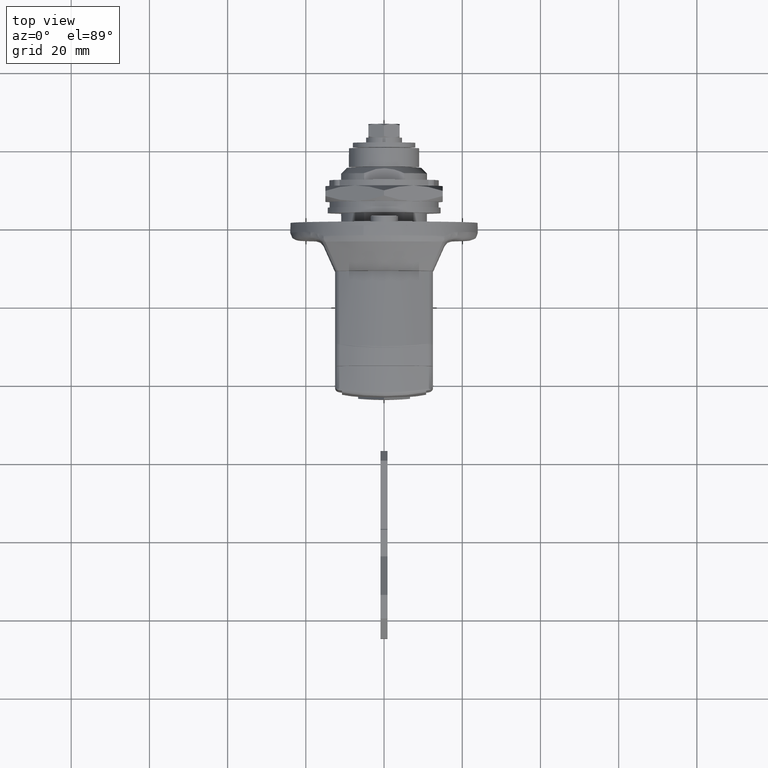
[diagram: clean part render]
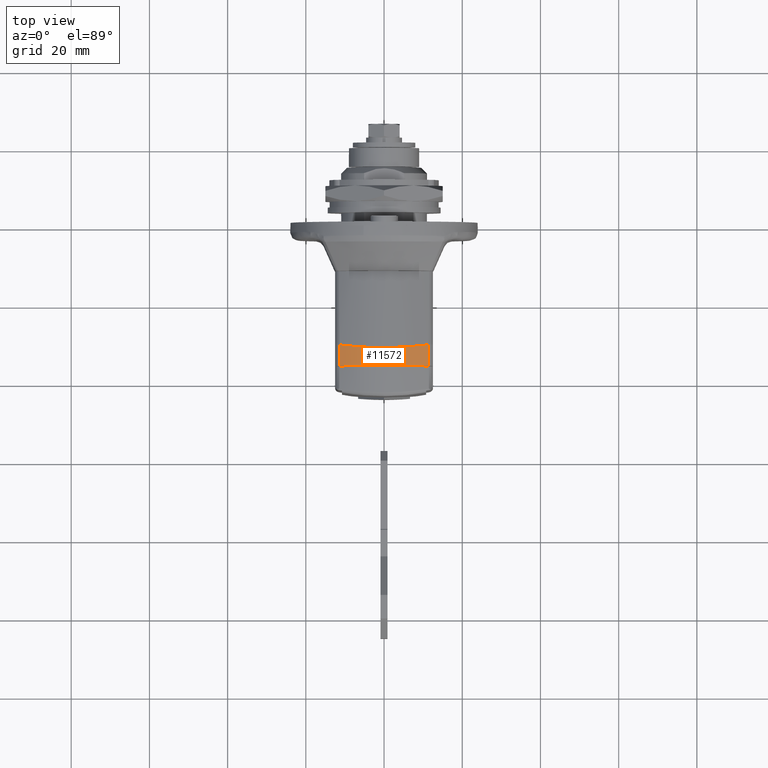
[diagram: same view with one face highlighted and labeled with its STEP entity id]
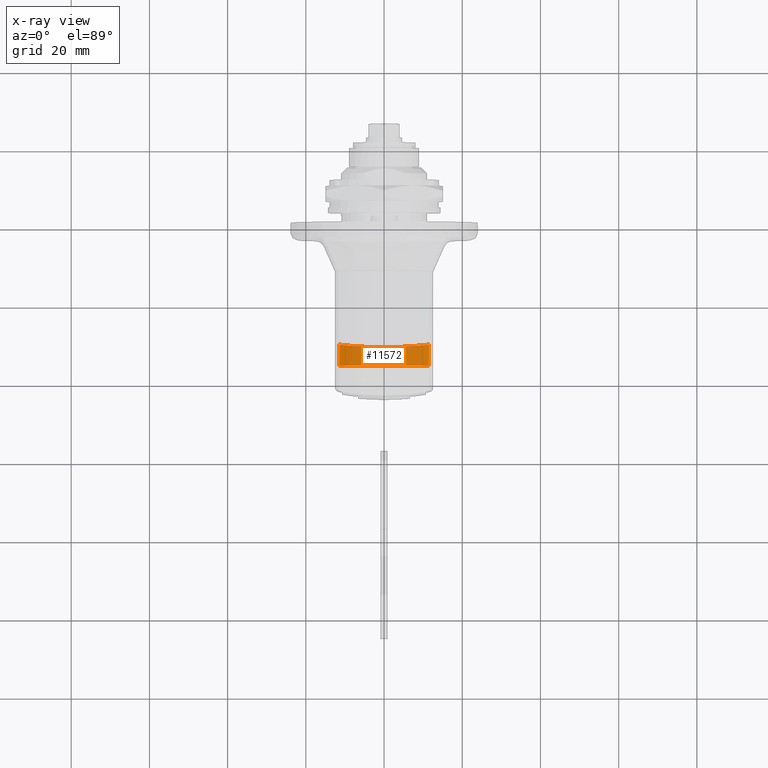
[diagram: x-ray of the same camera — body ghosted, the highlighted face saturated]
A machine part, top view. The second image highlights one B-rep face of the part: STEP entity #11572.
The next image is the same camera in x-ray: the body ghosted, the highlighted face saturated — about 0% of this face is hidden behind the body in this view.
In plain terms, the highlighted face is a freeform B-spline surface patch.
Its self-contained STEP definition (entity closure, byte-faithful):
#10377=CARTESIAN_POINT('',(-31.397209567573960,-11.454545454545460,14.090125377288761));
#10378=VERTEX_POINT('',#10377);
#10429=CARTESIAN_POINT('',(-31.397209567574048,11.454545454545761,14.090125377288601));
#10430=VERTEX_POINT('',#10429);
#10444=CARTESIAN_POINT('',(-31.397209567573960,-11.454545454545460,14.090125377288761));
#10445=CARTESIAN_POINT('',(-31.521169434124111,-10.577979726087261,14.566208937765539));
#10446=CARTESIAN_POINT('',(-31.629881124410051,-9.678369838751090,14.984315068618230));
#10447=CARTESIAN_POINT('',(-31.817641652512769,-7.834051525005688,15.707016282979090));
#10448=CARTESIAN_POINT('',(-31.896690448390071,-6.889343715205220,16.011613034743519));
#10449=CARTESIAN_POINT('',(-31.976585728877421,-5.679569516239955,16.319623218775298));
#10450=CARTESIAN_POINT('',(-31.991615409935729,-5.436164887383614,16.377575108473980));
#10451=CARTESIAN_POINT('',(-32.019751728860903,-4.946416372081823,16.486078253066552));
#10452=CARTESIAN_POINT('',(-32.032811930479703,-4.700846539532745,16.536450433330860));
#10453=CARTESIAN_POINT('',(-32.068893627810127,-3.964135120391929,16.675630118388849));
#10454=CARTESIAN_POINT('',(-32.088869795633059,-3.472122645180372,16.752706894357249));
#10455=CARTESIAN_POINT('',(-32.136805262919417,-1.993519466199423,16.937684976361918));
#10456=CARTESIAN_POINT('',(-32.152818491711230,-1.004372689692880,16.999508101882469));
#10457=CARTESIAN_POINT('',(-32.153008505130963,0.484450716311787,17.000241580273759));
#10458=CARTESIAN_POINT('',(-32.149088425301827,0.981578152402833,16.985108895701551));
#10459=CARTESIAN_POINT('',(-32.137134824921660,1.728569529776358,16.938969975391981));
#10460=CARTESIAN_POINT('',(-32.132137268536198,1.977783519541298,16.919680807482809));
#10461=CARTESIAN_POINT('',(-32.120089980008778,2.476650698111325,16.873184934180351));
#10462=CARTESIAN_POINT('',(-32.113025226999547,2.726707355520751,16.845920267469829));
#10463=CARTESIAN_POINT('',(-32.072754433836103,3.970496185777979,16.690519253943521));
#10464=CARTESIAN_POINT('',(-32.024744043721320,4.948199859000727,16.505283230583132));
#10465=CARTESIAN_POINT('',(-31.898101645360541,6.870104320523625,16.017052118368021));
#10466=CARTESIAN_POINT('',(-31.819467332712250,7.814302301254792,15.714047093282790));
#10467=CARTESIAN_POINT('',(-31.701701235413260,8.973337486352214,15.260753981935050));
#10468=CARTESIAN_POINT('',(-31.677170707450959,9.204080065887062,15.166355045855660));
#10469=CARTESIAN_POINT('',(-31.626131753070279,9.663413809991774,14.969998166022920));
#10470=CARTESIAN_POINT('',(-31.599649108333839,9.891753035334881,14.868139474312830));
#10471=CARTESIAN_POINT('',(-31.517548332091120,10.570766823605560,14.552449918307660));
#10472=CARTESIAN_POINT('',(-31.459191872198009,11.016245821637920,14.328176264992670));
#10473=CARTESIAN_POINT('',(-31.397209567574048,11.454545454545761,14.090125377288601));
#10474=B_SPLINE_CURVE_WITH_KNOTS('',3,(#10444,#10445,#10446,#10447,#10448,#10449,#10450,#10451,#10452,#10453,#10454,#10455,#10456,#10457,#10458,#10459,#10460,#10461,#10462,#10463,#10464,#10465,#10466,#10467,#10468,#10469,#10470,#10471,#10472,#10473),.UNSPECIFIED.,.F.,.U.,(4,2,2,2,2,2,2,2,2,2,2,2,2,2,4),(0.0,0.125000000000000,0.250000000000000,0.281250000000000,0.312500000000000,0.375000000000000,0.500000000000000,0.562500000000000,0.593750000000000,0.625000000000000,0.750000000000000,0.875000000000000,0.906250000000000,0.937500000000000,1.0),.UNSPECIFIED.);
#10475=EDGE_CURVE('',#10378,#10430,#10474,.T.);
#10690=CARTESIAN_POINT('',(-36.799999999999997,11.454545454545761,14.090125377288601));
#10691=VERTEX_POINT('',#10690);
#10707=CARTESIAN_POINT('',(-31.397209567574048,11.454545454545761,14.090125377288601));
#10708=CARTESIAN_POINT('',(-36.799999999999997,11.454545454545761,14.090125377288601));
#10709=QUASI_UNIFORM_CURVE('',1,(#10707,#10708),.UNSPECIFIED.,.F.,.U.);
#10710=EDGE_CURVE('',#10430,#10691,#10709,.T.);
#10737=CARTESIAN_POINT('',(-36.799999999999997,-11.454545454545460,14.090125377288761));
#10738=VERTEX_POINT('',#10737);
#10758=CARTESIAN_POINT('',(-36.799999999999997,-11.454545454545460,14.090125377288761));
#10759=CARTESIAN_POINT('',(-31.397209567573960,-11.454545454545460,14.090125377288761));
#10760=QUASI_UNIFORM_CURVE('',1,(#10758,#10759),.UNSPECIFIED.,.F.,.U.);
#10761=EDGE_CURVE('',#10738,#10378,#10760,.T.);
#11540=CARTESIAN_POINT('',(-31.262139806763312,12.358245773980711,13.573618091864510));
#11541=CARTESIAN_POINT('',(-36.938446504830921,12.358245773980711,13.573618091864510));
#11542=CARTESIAN_POINT('',(-31.262139806763312,-0.059304722278105,21.032643541756890));
#11543=CARTESIAN_POINT('',(-36.938446504830921,-0.059304722278105,21.032643541756890));
#11544=CARTESIAN_POINT('',(-31.262139806763305,-12.445184185850621,13.521144962702751));
#11545=CARTESIAN_POINT('',(-36.938446504830921,-12.445184185850621,13.521144962702751));
#11553=(BOUNDED_SURFACE()B_SPLINE_SURFACE(1,2,((#11540,#11542,#11544),(#11541,#11543,#11545)),.UNSPECIFIED.,.F.,.F.,.U.)B_SPLINE_SURFACE_WITH_KNOTS((2,2),(3,3),(0.0,5.676306698067619),(0.0,26.725703863804679),.UNSPECIFIED.)GEOMETRIC_REPRESENTATION_ITEM()RATIONAL_B_SPLINE_SURFACE(((1.0,0.852464074735955,0.991424714410322),(1.0,0.852464074735955,0.991424714410322)))REPRESENTATION_ITEM('')SURFACE());
#11554=ORIENTED_EDGE('',*,*,#10475,.T.);
#11555=ORIENTED_EDGE('',*,*,#10710,.T.);
#11556=CARTESIAN_POINT('',(-36.799999999999997,-11.454545454545460,14.090125377288761));
#11557=CARTESIAN_POINT('',(-36.799999999999997,1.890849E-013,20.311359685907110));
#11558=CARTESIAN_POINT('',(-36.799999999999997,11.454545454545750,14.090125377288601));
#11566=(BOUNDED_CURVE()B_SPLINE_CURVE(2,(#11556,#11557,#11558),.UNSPECIFIED.,.F.,.U.)CURVE()GEOMETRIC_REPRESENTATION_ITEM()QUASI_UNIFORM_CURVE()RATIONAL_B_SPLINE_CURVE((1.0,0.878755224053688,1.0))REPRESENTATION_ITEM(''));
#11567=EDGE_CURVE('',#10738,#10691,#11566,.T.);
#11568=ORIENTED_EDGE('',*,*,#11567,.F.);
#11569=ORIENTED_EDGE('',*,*,#10761,.T.);
#11570=EDGE_LOOP('',(#11554,#11555,#11568,#11569));
#11571=FACE_OUTER_BOUND('',#11570,.T.);
#11572=ADVANCED_FACE('',(#11571),#11553,.T.);